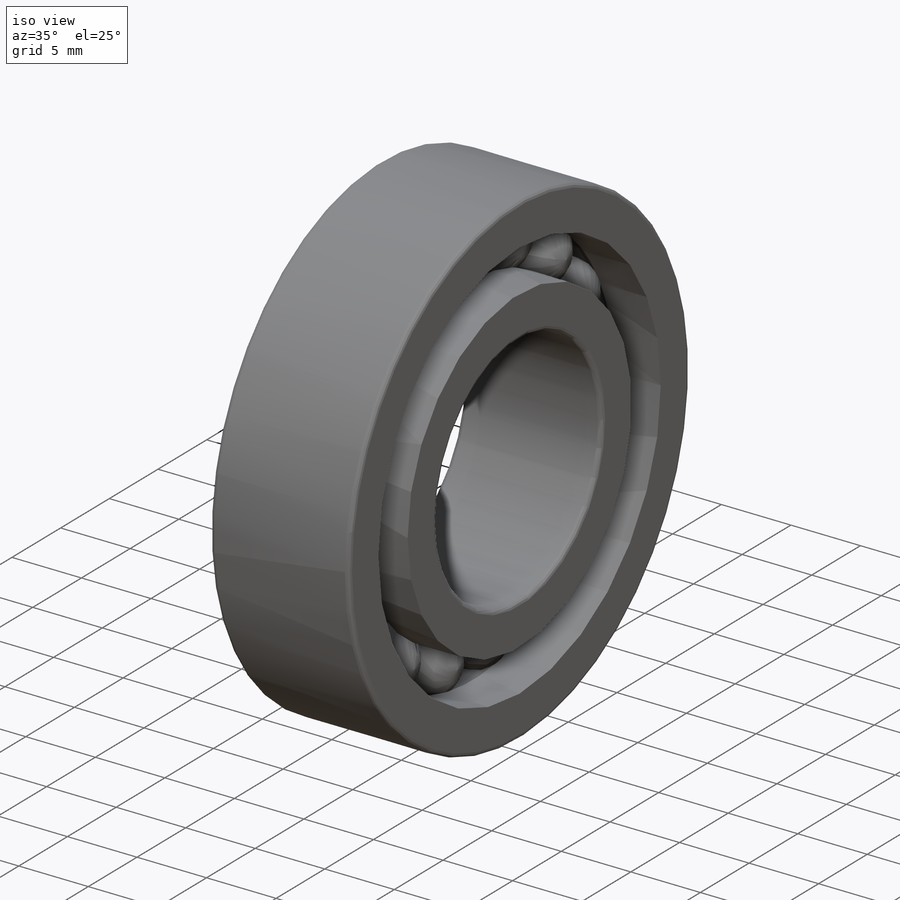
[diagram: iso view]
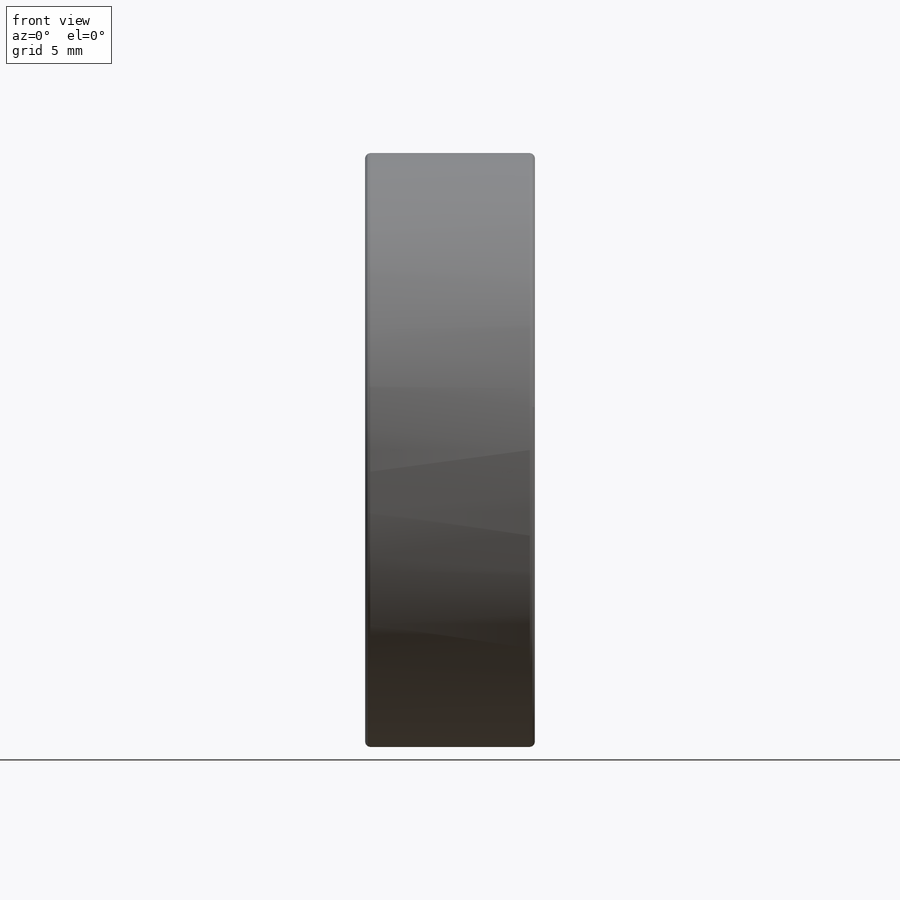
[diagram: front view]
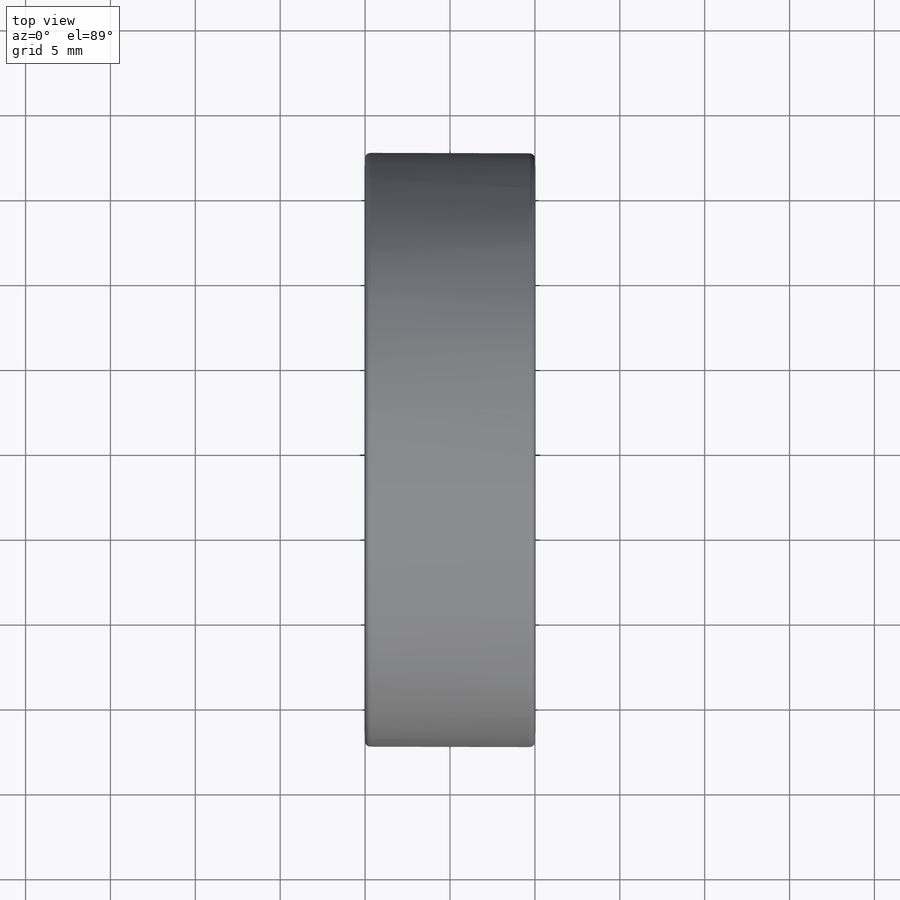
[diagram: top view]
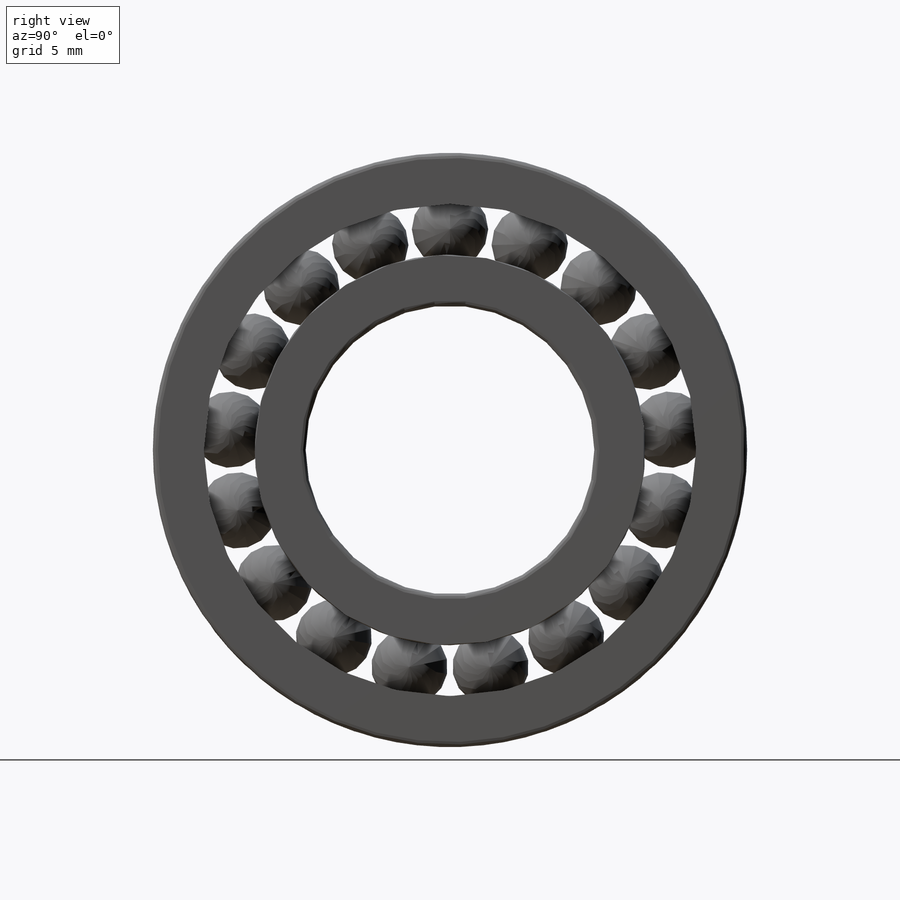
[diagram: right view]
SOLIDWORKS PART (.sldprt)
format: sldprt  version: not decoded by parser v0  size: 429,056 bytes
history: native  units: mm
features: sketch x3, revolve x3, material x1, pattern_circular x1, fillet x1 (+15 scaffold rows collapsed; 1 parser-record rows omitted)
feature tree (25):
  parser-record x1  (decoder bookkeeping rows leaked as tree rows — omitted from the tree; the rows remain in map.json)
  scaffold x15  (default folders/planes/origin — collapsed)
  material  "材质 <未指定>"
  sketch  "Sketch1"  dims[dia=4.5mm d0=26.0mm]
  revolve  "Revolve1"  Angle=360deg
  sketch  "Sketch2"  dims[c1.D5=4.48mm c1.B=10.0mm c1.B/2=4.0mm c1.d=17.0mm c1.D3=13.0mm c1.D4=3.0mm c2.B/2=5.0mm]
  revolve  "Revolve2"  Angle=360deg
  sketch  "Sketch3"  dims[c1.DD=35.0mm c1.B=10.0mm c1.B/2=4.0mm c1.D4=13.0mm c1.D5=3.0mm c2.B/2=5.0mm]
  revolve  "Revolve3"  Angle=360deg
  pattern_circular  "Circular-Pattern1"  Count=17 Angle=360deg m=17
  fillet  "Fillet1"  Radius=0.3mm r=0.3mm CopiedFlag=1
decode coverage: 8 of 8 modeling features carry decoded parameters
note: suppression state not decoded; provenance and decode notes live in map.json
